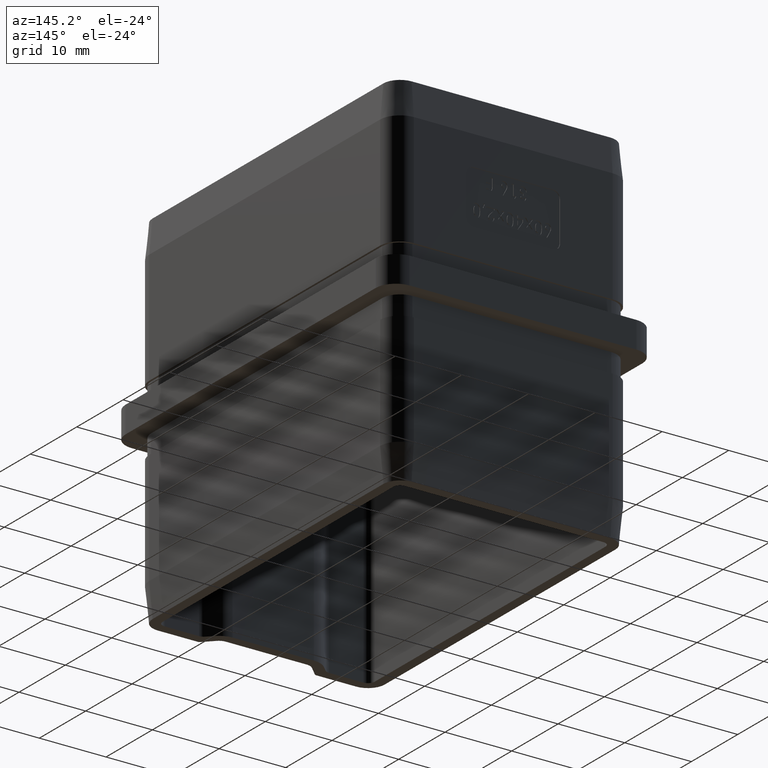
[diagram: clean part render]
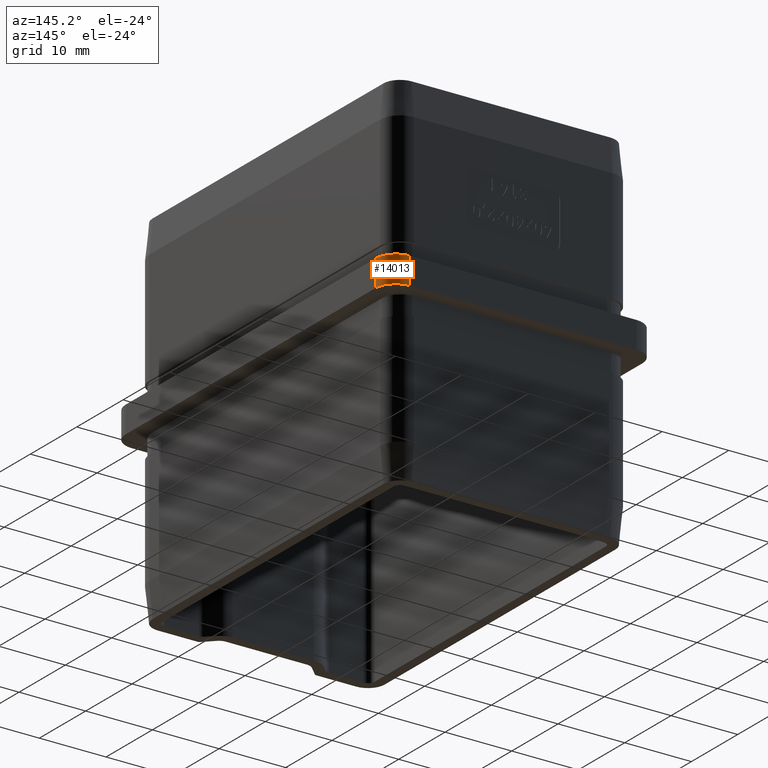
[diagram: same view with one face highlighted and labeled with its STEP entity id]
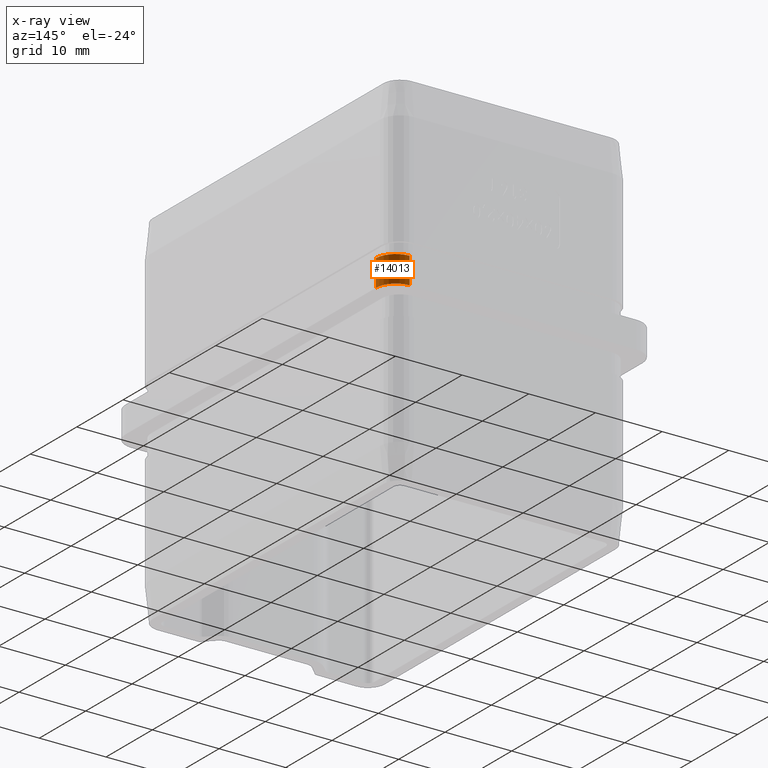
[diagram: x-ray of the same camera — body ghosted, the highlighted face saturated]
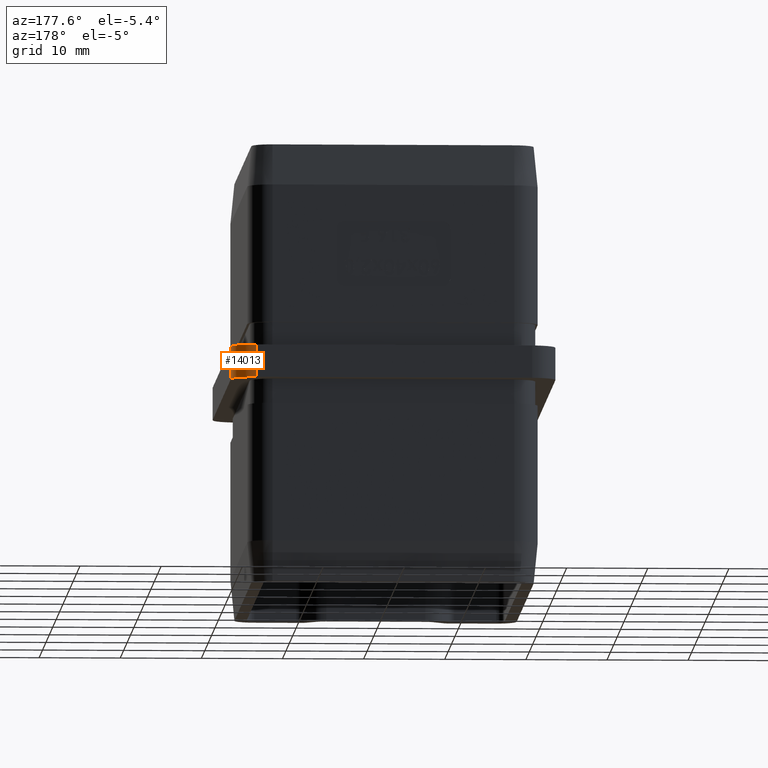
[diagram: same view with one face highlighted and labeled with its STEP entity id]
A machine part, auxiliary view. The second image highlights one B-rep face of the part: STEP entity #14013.
The next image is the same camera in x-ray: the body ghosted, the highlighted face saturated — about 0% of this face is hidden behind the body in this view.
A second angle (auxiliary view) of the same face is appended — the face is thin or edge-on in the first view.
In plain terms, the highlighted cylindrical surface (edge-blend (fillet) strip) has radius 3 mm, axis along (-0, 0, -1).
Its self-contained STEP definition (entity closure, byte-faithful):
#62 = ORIENTED_EDGE ( 'NONE', *, *, #21601, .F. ) ;
#884 = DIRECTION ( 'NONE',  ( 0.0000000000000000000, -0.0000000000000000000, 1.000000000000000000 ) ) ;
#2851 = AXIS2_PLACEMENT_3D ( 'NONE', #21842, #6424, #16088 ) ;
#4223 = CARTESIAN_POINT ( 'NONE',  ( 19.99999999999999600, 26.99999999999999300, -2.000000000000000000 ) ) ;
#5481 = EDGE_CURVE ( 'NONE', #17730, #9034, #21895, .T. ) ;
#5778 = EDGE_CURVE ( 'NONE', #16813, #17730, #24606, .T. ) ;
#6424 = DIRECTION ( 'NONE',  ( 0.0000000000000000000, -0.0000000000000000000, -1.000000000000000000 ) ) ;
#6839 = VECTOR ( 'NONE', #884, 1000.000000000000000 ) ;
#7650 = EDGE_CURVE ( 'NONE', #14288, #16813, #17541, .T. ) ;
#9034 = VERTEX_POINT ( 'NONE', #16298 ) ;
#9121 = CARTESIAN_POINT ( 'NONE',  ( 17.00000000000000000, 29.99999999999999300, 2.000000000000000000 ) ) ;
#9710 = AXIS2_PLACEMENT_3D ( 'NONE', #15864, #19807, #13822 ) ;
#10378 = DIRECTION ( 'NONE',  ( -1.000000000000000000, 0.0000000000000000000, 0.0000000000000000000 ) ) ;
#12096 = ORIENTED_EDGE ( 'NONE', *, *, #5778, .F. ) ;
#12775 = EDGE_LOOP ( 'NONE', ( #12096, #23093, #62, #18235 ) ) ;
#13822 = DIRECTION ( 'NONE',  ( 1.000000000000000000, 0.0000000000000000000, 0.0000000000000000000 ) ) ;
#14013 = ADVANCED_FACE ( 'NONE', ( #20761 ), #22283, .T. ) ;
#14227 = CARTESIAN_POINT ( 'NONE',  ( 17.00000000000000000, 26.99999999999999300, 2.000000000000000000 ) ) ;
#14288 = VERTEX_POINT ( 'NONE', #4223 ) ;
#15649 = CIRCLE ( 'NONE', #2851, 2.999999999999999100 ) ;
#15838 = AXIS2_PLACEMENT_3D ( 'NONE', #14227, #20146, #10378 ) ;
#15864 = CARTESIAN_POINT ( 'NONE',  ( 17.00000000000000000, 26.99999999999999300, 2.000000000000000000 ) ) ;
#16088 = DIRECTION ( 'NONE',  ( 1.000000000000000000, 0.0000000000000000000, 0.0000000000000000000 ) ) ;
#16298 = CARTESIAN_POINT ( 'NONE',  ( 17.00000000000000000, 29.99999999999999300, -2.000000000000000000 ) ) ;
#16813 = VERTEX_POINT ( 'NONE', #24448 ) ;
#17541 = LINE ( 'NONE', #22157, #6839 ) ;
#17730 = VERTEX_POINT ( 'NONE', #9121 ) ;
#18235 = ORIENTED_EDGE ( 'NONE', *, *, #5481, .F. ) ;
#19807 = DIRECTION ( 'NONE',  ( -0.0000000000000000000, 0.0000000000000000000, 1.000000000000000000 ) ) ;
#20146 = DIRECTION ( 'NONE',  ( -0.0000000000000000000, 0.0000000000000000000, -1.000000000000000000 ) ) ;
#20761 = FACE_OUTER_BOUND ( 'NONE', #12775, .T. ) ;
#21383 = DIRECTION ( 'NONE',  ( -0.0000000000000000000, 0.0000000000000000000, -1.000000000000000000 ) ) ;
#21601 = EDGE_CURVE ( 'NONE', #9034, #14288, #15649, .T. ) ;
#21842 = CARTESIAN_POINT ( 'NONE',  ( 17.00000000000000000, 26.99999999999999300, -2.000000000000000000 ) ) ;
#21895 = LINE ( 'NONE', #23646, #23091 ) ;
#22157 = CARTESIAN_POINT ( 'NONE',  ( 19.99999999999999600, 26.99999999999999300, 2.000000000000000000 ) ) ;
#22283 = CYLINDRICAL_SURFACE ( 'NONE', #15838, 2.999999999999999100 ) ;
#23091 = VECTOR ( 'NONE', #21383, 1000.000000000000000 ) ;
#23093 = ORIENTED_EDGE ( 'NONE', *, *, #7650, .F. ) ;
#23646 = CARTESIAN_POINT ( 'NONE',  ( 17.00000000000000000, 29.99999999999999300, 2.000000000000000000 ) ) ;
#24448 = CARTESIAN_POINT ( 'NONE',  ( 19.99999999999999600, 26.99999999999999300, 2.000000000000000000 ) ) ;
#24606 = CIRCLE ( 'NONE', #9710, 2.999999999999999100 ) ;